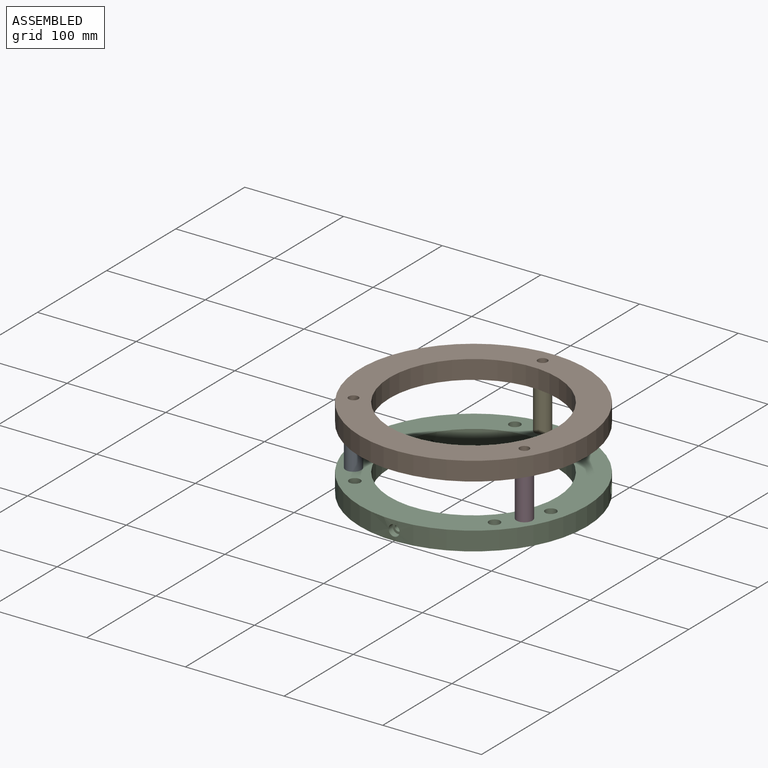
[diagram: assembled view]
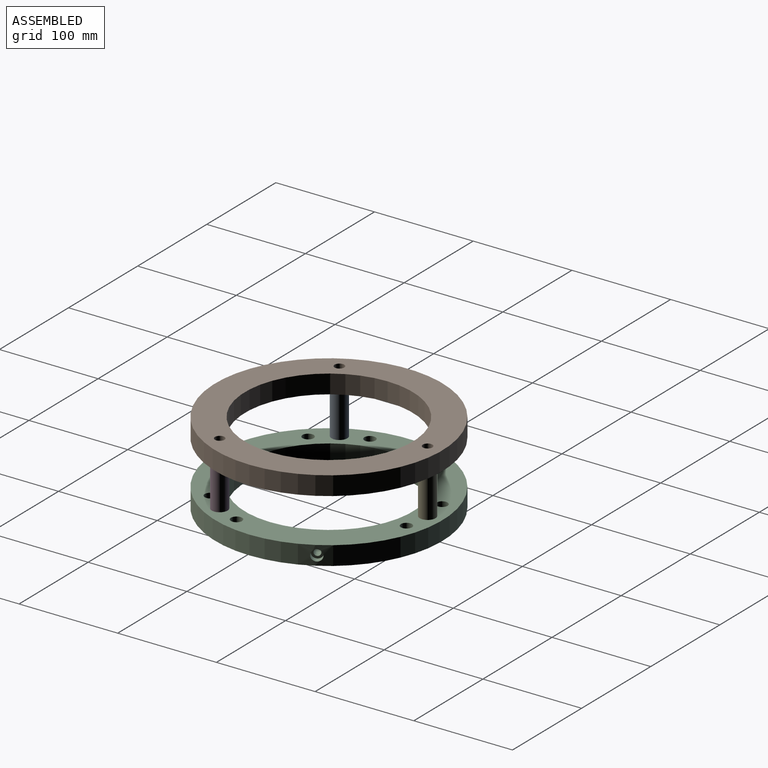
[diagram: assembled view, second angle]
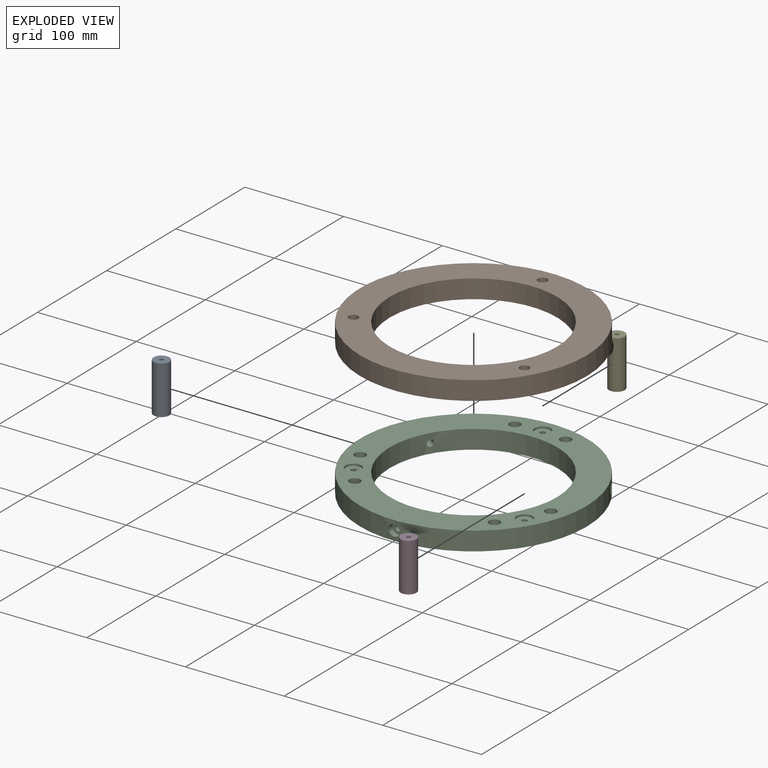
[diagram: exploded view]
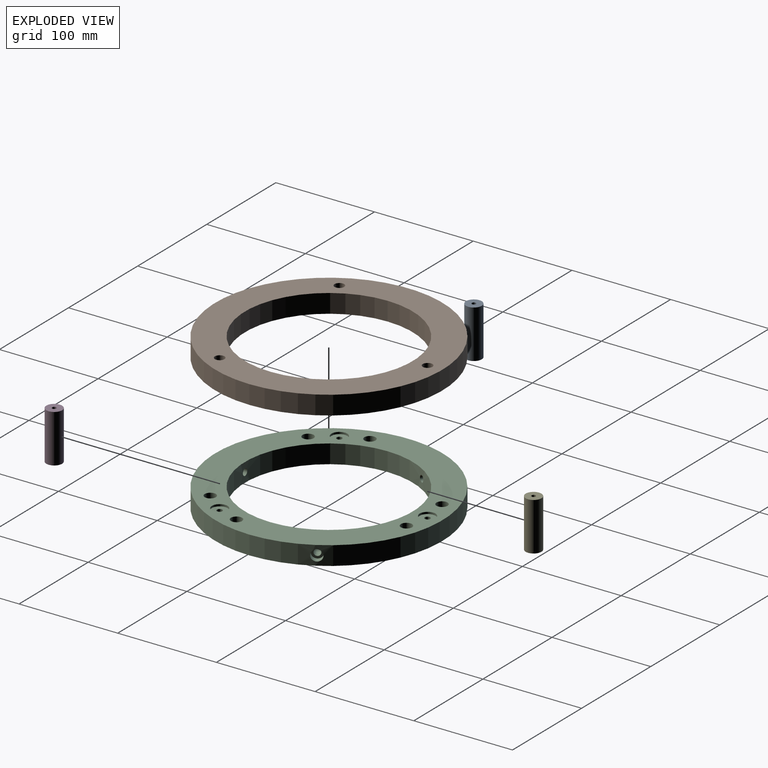
[diagram: exploded view, second angle]
ASSEMBLY  parts=5 mates=10
PART A: 7 faces, bbox 16x16x49 mm
  f0: cylinder r=8mm len=49mm, axis (0,0,-1), area 2463mm2, adj f1,f2
  f1: plane 16x16mm, normal (0,0,1), area 187.2mm2, adj f0,f4
  f2: plane 16x16mm, normal (0,0,-1), area 187.2mm2, adj f0,f6
  f3: cone r=0mm half-angle=59deg, axis (0,0,1), area 16.2mm2, adj f4
  f4: cylinder r=2.1mm len=17.4mm, axis (0,0,1), area 229.6mm2, adj f1,f3
  f5: cone r=0mm half-angle=59deg, axis (0,0,-1), area 16.2mm2, adj f6
  f6: cylinder r=2.1mm len=17.4mm, axis (0,0,-1), area 229.6mm2, adj f2,f5
PART B: 19 faces, bbox 230x230x19 mm
  f0: cylinder r=85mm len=170mm, axis (0,0,-1), area 10147.3mm2, adj f2,f3
  f1: cylinder r=115mm len=230mm, axis (0,0,-1), area 13728.8mm2, adj f2,f3
  f2: plane 230x230mm, normal (0,0,1), area 18625.6mm2, adj f0,f1,f12,f15,f18
  f3: plane 230x230mm, normal (0,0,-1), area 18510.3mm2, adj f0,f1,f4,f6,f8
  f4: cylinder r=6mm len=12mm, axis (0,0,-1), area 75.4mm2, adj f3,f5
  f5: plane 12x12mm, normal (0,0,-1), area 89.3mm2, adj f4,f16
  f6: cylinder r=6mm len=12mm, axis (0,0,-1), area 75.4mm2, adj f3,f7
  f7: plane 12x12mm, normal (0,0,-1), area 89.3mm2, adj f6,f13
  f8: cylinder r=6mm len=12mm, axis (0,0,-1), area 75.4mm2, adj f3,f9
  f9: plane 12x12mm, normal (0,0,-1), area 89.3mm2, adj f8,f10
  f10: cylinder r=2.75mm len=12mm, axis (0,0,1), area 207.3mm2, adj f9,f11
  f11: plane 9.75x9.75mm, normal (0,0,1), area 50.9mm2, adj f10,f12
  f12: cylinder r=4.88mm len=9.75mm, axis (0,0,1), area 153.2mm2, adj f2,f11
  f13: cylinder r=2.75mm len=12mm, axis (0,0,1), area 207.3mm2, adj f7,f14
  f14: plane 9.75x9.75mm, normal (0,0,1), area 50.9mm2, adj f13,f15
  f15: cylinder r=4.88mm len=9.75mm, axis (0,0,1), area 153.2mm2, adj f2,f14
  f16: cylinder r=2.75mm len=12mm, axis (0,0,1), area 207.3mm2, adj f5,f17
  f17: plane 9.75x9.75mm, normal (0,0,1), area 50.9mm2, adj f16,f18
  f18: cylinder r=4.88mm len=9.75mm, axis (0,0,1), area 153.2mm2, adj f2,f17
PART C: 64 faces, bbox 230x230x19 mm
  f0: plane 230x230mm, normal (0,0,-1), area 17419.2mm2, adj f1,f2,f8,f10,f12,f34,f36,f38
  f1: cylinder r=85mm len=170mm, axis (0,0,-1), area 10047.9mm2, adj f0,f6,f19,f23,f24,f28,f29,f33
  f2: cylinder r=115mm len=230mm, axis (0,0,-1), area 13433.2mm2, adj f0,f6,f20,f25,f30
  f3: cylinder r=2.75mm len=12mm, axis (0,0,-1), area 207.3mm2, adj f7,f18
  f4: cylinder r=2.75mm len=12mm, axis (0,0,-1), area 207.3mm2, adj f9,f16
  f5: cylinder r=2.75mm len=12mm, axis (0,0,-1), area 207.3mm2, adj f11,f14
  f6: plane 230x230mm, normal (0,0,1), area 17650mm2, adj f1,f2,f13,f15,f17,f48,f51,f54
  f7: plane 9.75x9.75mm, normal (0,0,-1), area 50.9mm2, adj f3,f8
  f8: cylinder r=4.88mm len=9.75mm, axis (0,0,-1), area 153.2mm2, adj f0,f7
  f9: plane 9.75x9.75mm, normal (0,0,-1), area 50.9mm2, adj f4,f10
  f10: cylinder r=4.88mm len=9.75mm, axis (0,0,-1), area 153.2mm2, adj f0,f9
  f11: plane 9.75x9.75mm, normal (0,0,-1), area 50.9mm2, adj f5,f12
  f12: cylinder r=4.88mm len=9.75mm, axis (0,0,-1), area 153.2mm2, adj f0,f11
  f13: cylinder r=8mm len=16mm, axis (0,0,1), area 100.5mm2, adj f6,f14
  f14: plane 16x16mm, normal (0,0,1), area 177.3mm2, adj f5,f13
  f15: cylinder r=8mm len=16mm, axis (0,0,1), area 100.5mm2, adj f6,f16
  f16: plane 16x16mm, normal (0,0,1), area 177.3mm2, adj f4,f15
  f17: cylinder r=8mm len=16mm, axis (0,0,1), area 100.5mm2, adj f6,f18
  f18: plane 16x16mm, normal (0,0,1), area 177.3mm2, adj f3,f17
  f19: cone r=0mm half-angle=59deg, axis (0,-1,0), area 0.6mm2, adj f1,f21
  f20: cylinder r=5.62mm len=11.25mm, axis (0,-1,0), area 209.6mm2, adj f2,f22
  f21: cylinder r=3.3mm len=24mm, axis (0,-1,0), area 497.6mm2, adj f19,f22,f23
  f22: plane 11.25x11.25mm, normal (0,-1,0), area 65.2mm2, adj f20,f21
  f23: cone r=0mm half-angle=59deg, axis (0,-1,0), area 0.6mm2, adj f1,f21
  f24: cone r=0mm half-angle=59deg, axis (0.87,0.5,0), area 0.6mm2, adj f1,f26
  f25: cylinder r=5.62mm len=12.74mm, axis (0.87,0.5,0), area 209.6mm2, adj f2,f27
  f26: cylinder r=3.3mm len=24.08mm, axis (0.87,0.5,0), area 497.6mm2, adj f24,f27,f28
  f27: plane 11.25x9.74mm, normal (0.87,0.5,0), area 65.2mm2, adj f25,f26
  f28: cone r=0mm half-angle=59deg, axis (0.87,0.5,0), area 0.6mm2, adj f1,f26
  f29: cone r=0mm half-angle=59deg, axis (-0.87,0.5,0), area 0.6mm2, adj f1,f31
  f30: cylinder r=5.62mm len=12.74mm, axis (-0.87,0.5,0), area 209.6mm2, adj f2,f32
  f31: cylinder r=3.3mm len=24.08mm, axis (-0.87,0.5,0), area 497.6mm2, adj f29,f32,f33
  f32: plane 11.25x9.74mm, normal (-0.87,0.5,0), area 65.2mm2, adj f30,f31
  f33: cone r=0mm half-angle=59deg, axis (-0.87,0.5,0), area 0.6mm2, adj f1,f31
  f34: cylinder r=8mm len=16mm, axis (0,0,-1), area 100.5mm2, adj f0,f35
  f35: plane 16x16mm, normal (0,0,-1), area 166.8mm2, adj f34,f58
  f36: cylinder r=8mm len=16mm, axis (0,0,-1), area 100.5mm2, adj f0,f37
  f37: plane 16x16mm, normal (0,0,-1), area 166.8mm2, adj f36,f49
  f38: cylinder r=8mm len=16mm, axis (0,0,-1), area 100.5mm2, adj f0,f39
  f39: plane 16x16mm, normal (0,0,-1), area 166.8mm2, adj f38,f61
  f40: cylinder r=8mm len=16mm, axis (0,0,-1), area 100.5mm2, adj f0,f41
  f41: plane 16x16mm, normal (0,0,-1), area 166.8mm2, adj f40,f52
  f42: cylinder r=8mm len=16mm, axis (0,0,-1), area 100.5mm2, adj f0,f43
  f43: plane 16x16mm, normal (0,0,-1), area 166.8mm2, adj f42,f55
  f44: cylinder r=8mm len=16mm, axis (0,0,-1), area 100.5mm2, adj f0,f45
  f45: plane 16x16mm, normal (0,0,-1), area 166.8mm2, adj f44,f46
  f46: cylinder r=3.3mm len=11mm, axis (0,0,1), area 228.1mm2, adj f45,f47
  f47: plane 11.25x11.25mm, normal (0,0,1), area 65.2mm2, adj f46,f48
  f48: cylinder r=5.62mm len=11.25mm, axis (0,0,1), area 212.1mm2, adj f6,f47
  f49: cylinder r=3.3mm len=11mm, axis (0,0,1), area 228.1mm2, adj f37,f50
  f50: plane 11.25x11.25mm, normal (0,0,1), area 65.2mm2, adj f49,f51
  f51: cylinder r=5.62mm len=11.25mm, axis (0,0,1), area 212.1mm2, adj f6,f50
  f52: cylinder r=3.3mm len=11mm, axis (0,0,1), area 228.1mm2, adj f41,f53
  f53: plane 11.25x11.25mm, normal (0,0,1), area 65.2mm2, adj f52,f54
  f54: cylinder r=5.62mm len=11.25mm, axis (0,0,1), area 212.1mm2, adj f6,f53
  f55: cylinder r=3.3mm len=11mm, axis (0,0,1), area 228.1mm2, adj f43,f56
  f56: plane 11.25x11.25mm, normal (0,0,1), area 65.2mm2, adj f55,f57
  f57: cylinder r=5.62mm len=11.25mm, axis (0,0,1), area 212.1mm2, adj f6,f56
  f58: cylinder r=3.3mm len=11mm, axis (0,0,1), area 228.1mm2, adj f35,f59
  f59: plane 11.25x11.25mm, normal (0,0,1), area 65.2mm2, adj f58,f60
  f60: cylinder r=5.62mm len=11.25mm, axis (0,0,1), area 212.1mm2, adj f6,f59
  f61: cylinder r=3.3mm len=11mm, axis (0,0,1), area 228.1mm2, adj f39,f62
  f62: plane 11.25x11.25mm, normal (0,0,1), area 65.2mm2, adj f61,f63
  f63: cylinder r=5.62mm len=11.25mm, axis (0,0,1), area 212.1mm2, adj f6,f62
PART D: same geometry as A
PART E: same geometry as A
PLACE A t=(-80.49,-41.79,7.5)mm
PLACE B t=(6.12,8.21,54.5)mm
PLACE C t=(6.12,8.21,-9.5)mm
PLACE D t=(92.72,-41.79,7.5)mm
PLACE E t=(6.12,108.21,7.5)mm
MATE planar B.f6 <-> D.f0  axis (0,0,-1) through (92.72,-41.79,56.5)mm
MATE cylindrical B.f8 <-> E.f0  axis (0,0,-1) through (6.12,108.21,55.5)mm
MATE planar A.f0 <-> C.f5  axis (0,0,-1) through (-80.49,-41.79,7.5)mm
MATE cylindrical D.f0 <-> C.f4  axis (0,0,-1) through (92.72,-41.79,7.5)mm
MATE cylindrical E.f0 <-> C.f17  axis (0,0,-1) through (6.12,108.21,7.5)mm
MATE planar E.f0 <-> C.f17  axis (0,0,-1) through (6.12,108.21,7.5)mm
MATE cylindrical B.f6 <-> D.f0  axis (0,0,-1) through (92.72,-41.79,54.5)mm
MATE planar D.f0 <-> C.f4  axis (0,0,-1) through (92.72,-41.79,7.5)mm
MATE cylindrical B.f4 <-> A.f0  axis (0,0,-1) through (-80.49,-41.79,54.5)mm
MATE cylindrical A.f0 <-> C.f5  axis (0,0,-1) through (-80.49,-41.79,7.5)mm
